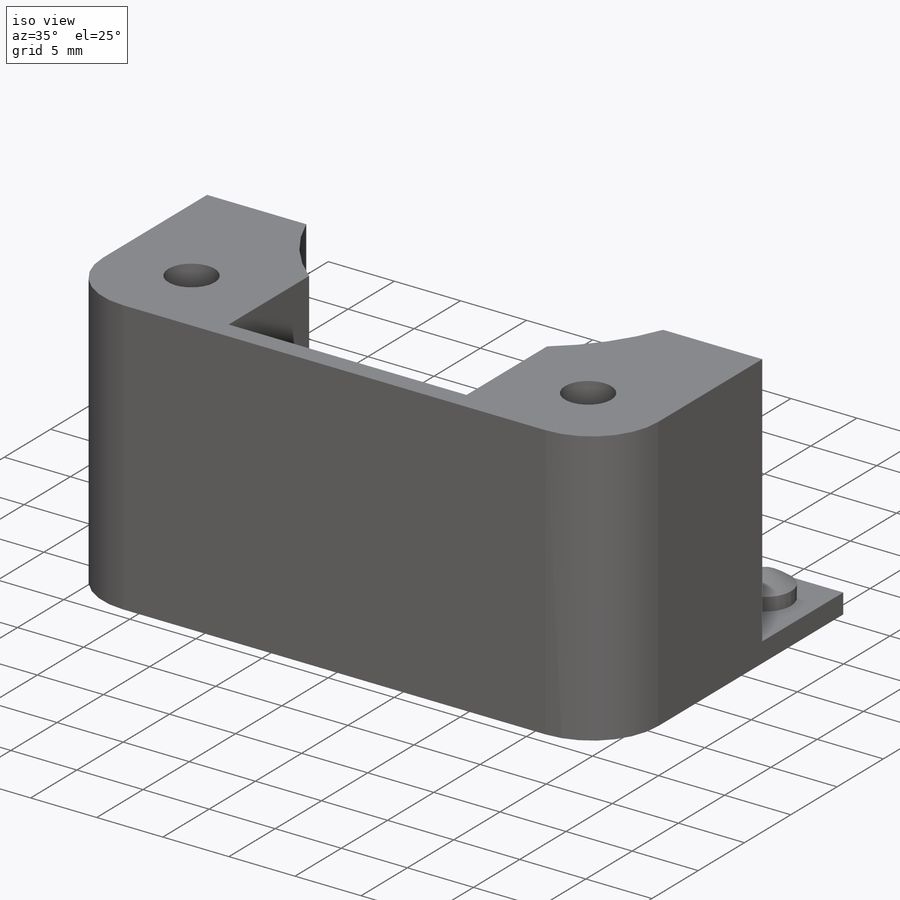
[diagram: iso view]
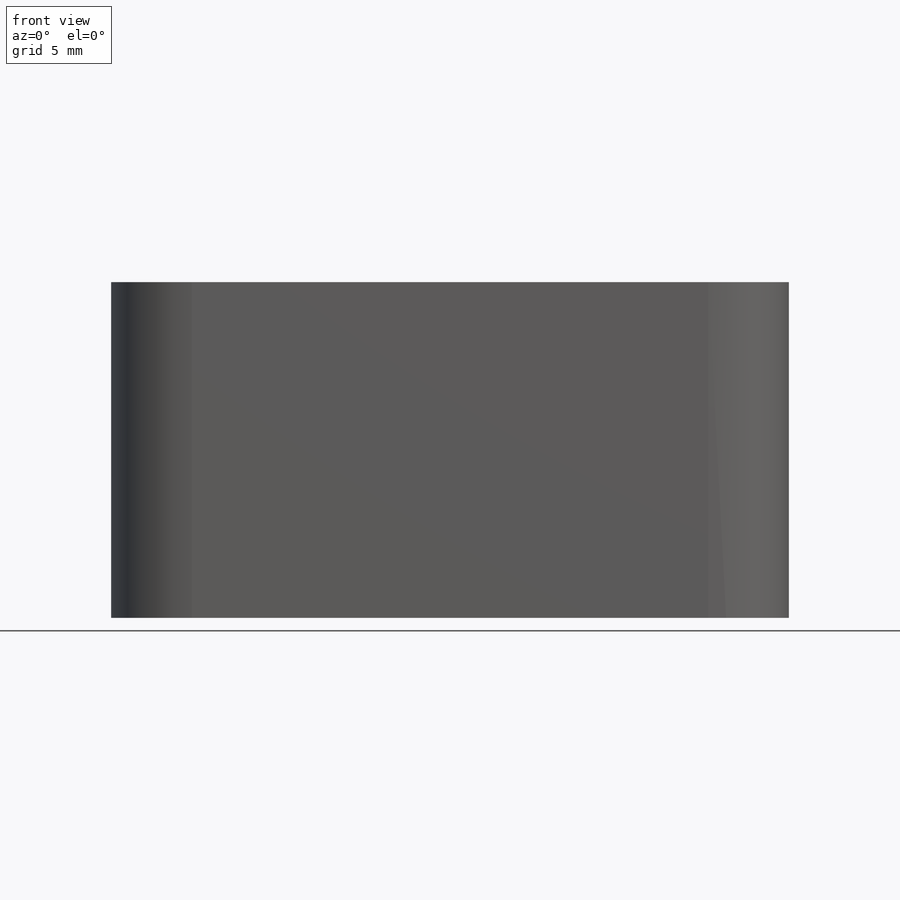
[diagram: front view]
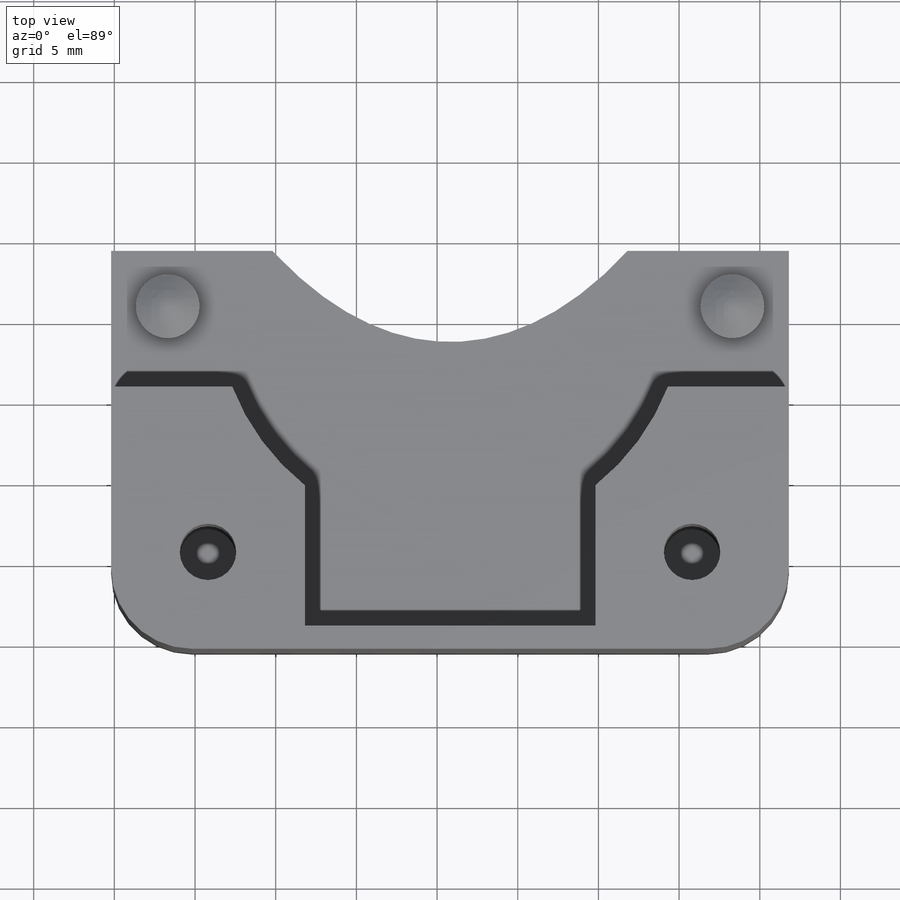
[diagram: top view]
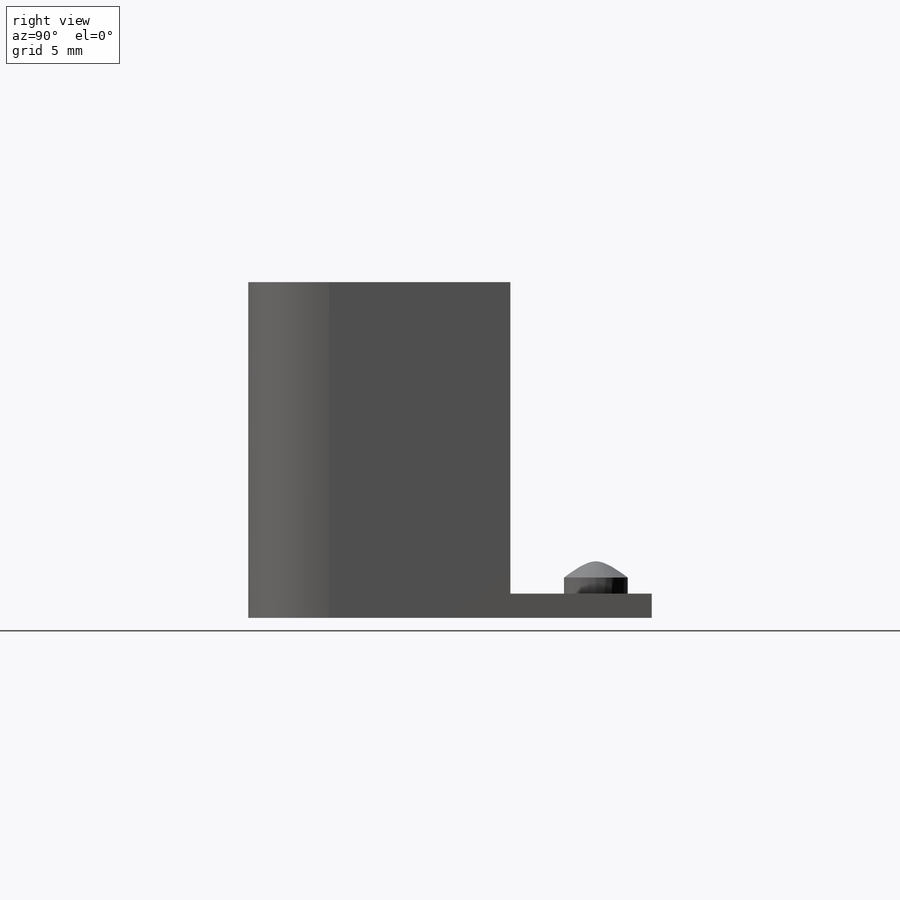
[diagram: right view]
SOLIDWORKS PART (.sldprt)
format: sldprt  version: not decoded by parser v0  size: 228,864 bytes
history: native  units: mm
features: sketch x4, extrude x3, material x1, dome x1, cut_extrude x1, fillet x1 (+13 scaffold rows collapsed)
feature tree (24):
  scaffold x13  (default folders/planes/origin — collapsed)
  material  "Material <not specified>"
  sketch  "Sketch1"  dims[D1=42.0mm D2=25.0mm D3=10.0mm D4=10.0mm]
  extrude  "Boss-Extrude1"  Depth=1.5mm
  sketch  "Sketch2"  dims[D2=3.5mm D3=3.5mm D1=2.0]
  extrude  "Boss-Extrude2"  Depth=1mm
  dome  "Dome1"
  sketch  "Sketch3"  dims[D1=7.5mm D2=7.5mm D3=~24.339248deg]
  extrude  "Boss-Extrude3"  Depth=19.3mm
  sketch  "Sketch4"  dims[c1.D4=~1.412219mm c1.D1=18.0mm c1.D2=12.0mm c1.D3=9.0mm c1.D5=6.0mm c1.D6=~7.181292mm c2.D5=6.0mm c2.D6=6.0mm c2.D7=6.0mm c2.D4=2.0]
  cut_extrude  "Cut-Extrude1"  [1 undecoded]
  fillet  "Fillet1"  Radius=5mm
decode coverage: 8 of 10 modeling features carry decoded parameters
note: ~ marks probable driven/reference dimensions
note: 1 parameter value undecoded
note: suppression state not decoded; provenance and decode notes live in map.json
